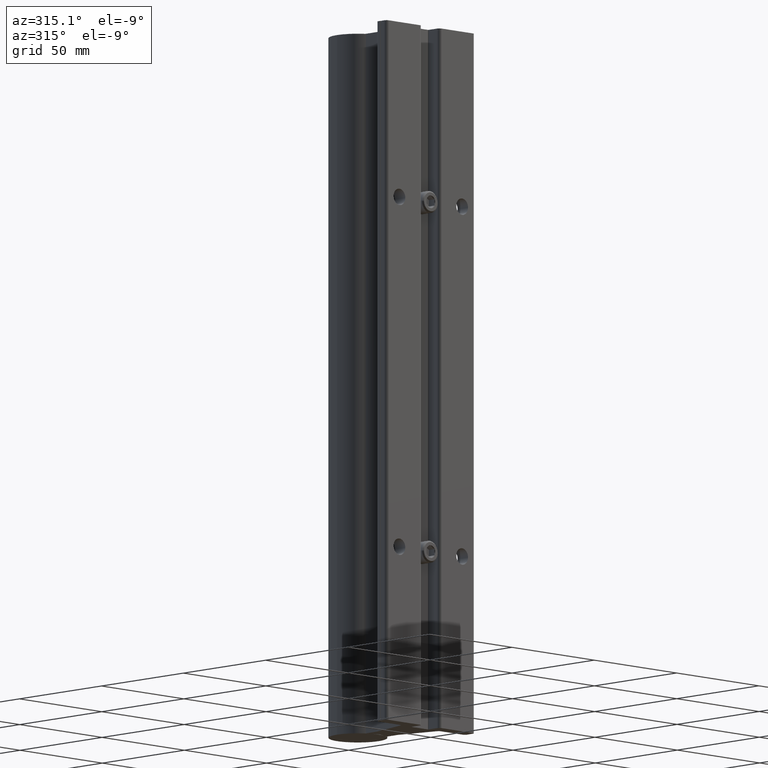
[diagram: clean part render]
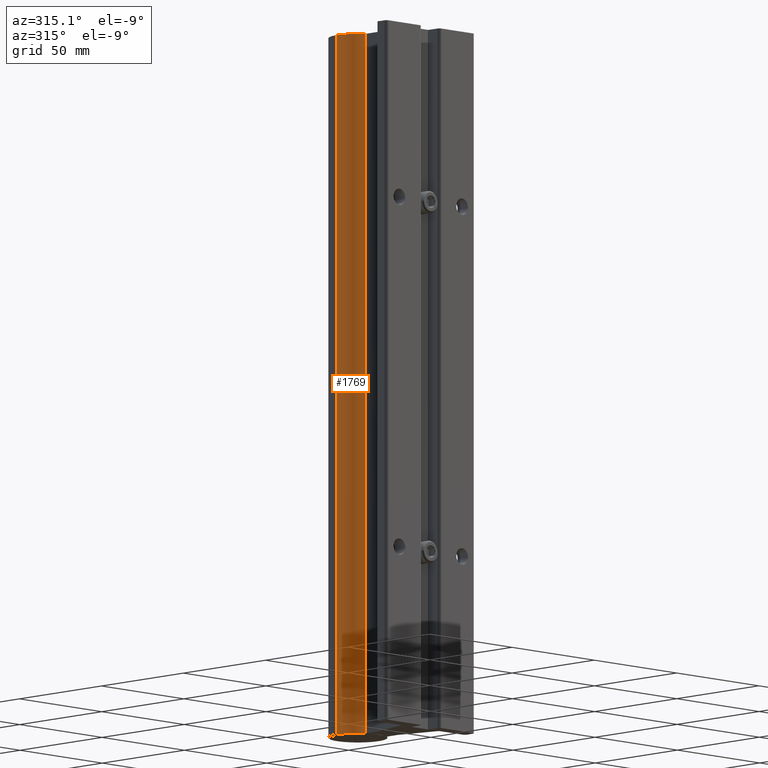
[diagram: same view with one face highlighted and labeled with its STEP entity id]
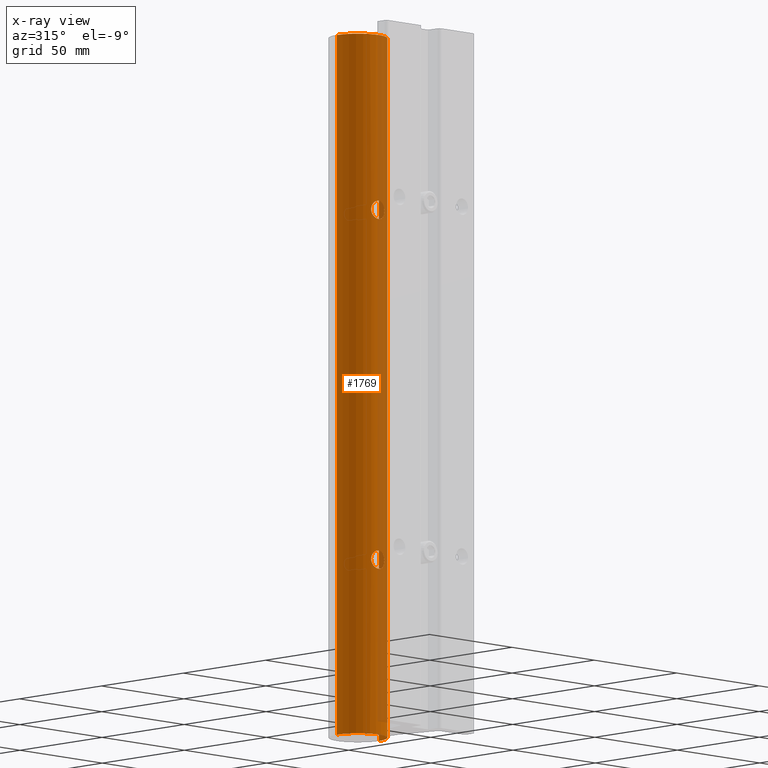
[diagram: x-ray of the same camera — body ghosted, the highlighted face saturated]
A machine part, auxiliary view. The second image highlights one B-rep face of the part: STEP entity #1769.
The next image is the same camera in x-ray: the body ghosted, the highlighted face saturated — about 19% of this face is hidden behind the body in this view.
In plain terms, the highlighted cylindrical surface (edge-blend (fillet) strip) has radius 12.7 mm, axis along (0, 0, 1).
Its self-contained STEP definition (entity closure, byte-faithful):
#4 = CARTESIAN_POINT ( 'NONE',  ( 0.09560078652235397267, 1.259149431177259748, -8.875676059742689361 ) ) ;
#48 = ORIENTED_EDGE ( 'NONE', *, *, #1730, .T. ) ;
#63 = CARTESIAN_POINT ( 'NONE',  ( -0.1564951272782237335, 1.275121831240573211, -9.010355046800681222 ) ) ;
#84 = CARTESIAN_POINT ( 'NONE',  ( -0.05063820119978776346, 1.252480159217775668, -8.851567179891718595 ) ) ;
#90 = CARTESIAN_POINT ( 'NONE',  ( -8.196081754135579170E-17, 1.250000000000000000, -3.156499999999999417 ) ) ;
#94 = CARTESIAN_POINT ( 'NONE',  ( 0.05075370098592688756, 1.252491623421628786, -3.148394792719597657 ) ) ;
#105 = CARTESIAN_POINT ( 'NONE',  ( 0.000000000000000000, 1.750000000000000000, -11.99999999999999822 ) ) ;
#113 = CARTESIAN_POINT ( 'NONE',  ( 0.09554229024632135414, 1.259137792854418958, -3.124369988947353960 ) ) ;
#124 = CARTESIAN_POINT ( 'NONE',  ( -0.04072955494209273136, 1.251560002186336895, -9.151454069033093219 ) ) ;
#142 = CARTESIAN_POINT ( 'NONE',  ( -0.1514414893444177290, 1.273481421671772917, -8.959219246323204544 ) ) ;
#143 = CARTESIAN_POINT ( 'NONE',  ( -0.1357655045532588922, 1.268748703922866650, -3.078521736294910660 ) ) ;
#164 = CARTESIAN_POINT ( 'NONE',  ( 0.1178830997218137805, 1.264038663556757758, -2.896558514937383144 ) ) ;
#167 = CARTESIAN_POINT ( 'NONE',  ( -0.05070669661409946821, 1.252486482524820977, -3.148412155886937569 ) ) ;
#175 = CARTESIAN_POINT ( 'NONE',  ( 0.1405814577952105016, 1.270152509823489595, -3.069521682105984084 ) ) ;
#184 = CARTESIAN_POINT ( 'NONE',  ( -0.02063512757121529345, 1.250324585779543529, -3.155471615359788373 ) ) ;
#188 = EDGE_CURVE ( 'NONE', #2259, #3614, #3984, .T. ) ;
#203 = CARTESIAN_POINT ( 'NONE',  ( -0.1514432164739248077, 1.273481935867222692, -3.040787736699337440 ) ) ;
#243 = CARTESIAN_POINT ( 'NONE',  ( 0.1178679316663040350, 1.264035795095121539, -9.103451840684776641 ) ) ;
#271 = VECTOR ( 'NONE', #1544, 39.37007874015748143 ) ;
#285 = CARTESIAN_POINT ( 'NONE',  ( 0.05065284700690678849, 1.252481518235631697, -8.851571626508986768 ) ) ;
#304 = CARTESIAN_POINT ( 'NONE',  ( 0.02055646357326389173, 1.250319155074914645, -8.844510654310177244 ) ) ;
#321 = CARTESIAN_POINT ( 'NONE',  ( 0.1484607547724582644, 1.272531118639973702, -8.949422464750744766 ) ) ;
#327 = CARTESIAN_POINT ( 'NONE',  ( 0.5000000000000000000, 1.750000000000000000, -11.99999999999999822 ) ) ;
#371 = CARTESIAN_POINT ( 'NONE',  ( -0.1554870185490531131, 1.274786047844190362, -3.020554180687853751 ) ) ;
#404 = CARTESIAN_POINT ( 'NONE',  ( -0.1484031328809076733, 1.272513656587303865, -9.050719394709512144 ) ) ;
#413 = CARTESIAN_POINT ( 'NONE',  ( 0.02064213769754214348, 1.250324616063695160, -3.155471563909014066 ) ) ;
#427 = CARTESIAN_POINT ( 'NONE',  ( -0.1554704722570755260, 1.274780669119014442, -8.979347474211012425 ) ) ;
#442 = CARTESIAN_POINT ( 'NONE',  ( 2.101067853164528571E-15, 1.249999999999999778, -8.843499999999998806 ) ) ;
#461 = CARTESIAN_POINT ( 'NONE',  ( -0.1554704722570754982, 1.274780669119014220, -2.979347474211013314 ) ) ;
#485 = ORIENTED_EDGE ( 'NONE', *, *, #188, .T. ) ;
#518 = DIRECTION ( 'NONE',  ( 0.000000000000000000, 0.000000000000000000, 1.000000000000000000 ) ) ;
#583 = CARTESIAN_POINT ( 'NONE',  ( 0.1356887000389168374, 1.268728011506206732, -8.921363473634940533 ) ) ;
#608 = DIRECTION ( 'NONE',  ( 0.000000000000000000, 0.000000000000000000, 1.000000000000000000 ) ) ;
#624 = CARTESIAN_POINT ( 'NONE',  ( 0.1035280489591258318, 1.260780212130743205, -9.117801000569084380 ) ) ;
#683 = CARTESIAN_POINT ( 'NONE',  ( -0.07859880021001160177, 1.256141287737158052, -9.135715486144853514 ) ) ;
#699 = CARTESIAN_POINT ( 'NONE',  ( -0.06963320848488399606, 1.254780770336873408, -9.140529546262069260 ) ) ;
#720 = CARTESIAN_POINT ( 'NONE',  ( -0.1243799828838284272, 1.265682033343106694, -8.904474761618457634 ) ) ;
#731 = CARTESIAN_POINT ( 'NONE',  ( 0.1035280489591252906, 1.260780212130743649, -3.117801000569084824 ) ) ;
#741 = CARTESIAN_POINT ( 'NONE',  ( -0.1405496522177391017, 1.270142859368248445, -8.930399423657641833 ) ) ;
#742 = CARTESIAN_POINT ( 'NONE',  ( -0.1565048378191059575, 1.275125031439485523, -2.989792767501073367 ) ) ;
#769 = CARTESIAN_POINT ( 'NONE',  ( 0.06964398895624185348, 1.254782635874228225, -3.140522836123970762 ) ) ;
#780 = CARTESIAN_POINT ( 'NONE',  ( -0.1514414893444176735, 1.273481421671772917, -2.959219246323203656 ) ) ;
#797 = EDGE_CURVE ( 'NONE', #3465, #2668, #1681, .T. ) ;
#803 = CARTESIAN_POINT ( 'NONE',  ( -0.1035399364845304288, 1.260782774289252561, -3.117790251898744813 ) ) ;
#821 = CARTESIAN_POINT ( 'NONE',  ( -0.07859880021001150463, 1.256141287737158052, -3.135715486144853514 ) ) ;
#835 = ORIENTED_EDGE ( 'NONE', *, *, #3144, .T. ) ;
#871 = LINE ( 'NONE', #327, #271 ) ;
#883 = CARTESIAN_POINT ( 'NONE',  ( 0.1565000483737302994, 1.275123453033293330, -9.010312990727419091 ) ) ;
#902 = CARTESIAN_POINT ( 'NONE',  ( 0.1034388360803587259, 1.260760536231932072, -8.882114575869943351 ) ) ;
#975 = AXIS2_PLACEMENT_3D ( 'NONE', #105, #2257, #3497 ) ;
#983 = CARTESIAN_POINT ( 'NONE',  ( -0.1034063837601280900, 1.260753755813636134, -8.882087021474569966 ) ) ;
#989 = CARTESIAN_POINT ( 'NONE',  ( -0.1484031328809074790, 1.272513656587303865, -3.050719394709512589 ) ) ;
#1000 = CARTESIAN_POINT ( 'NONE',  ( 0.01025452552329446029, 1.250000000000000000, -2.843499999999999694 ) ) ;
#1019 = CARTESIAN_POINT ( 'NONE',  ( -0.1484625484838919263, 1.272531726863998180, -8.949430081437837359 ) ) ;
#1027 = CARTESIAN_POINT ( 'NONE',  ( 0.1244033045994822895, 1.265688150019278035, -2.904506835837624035 ) ) ;
#1048 = CARTESIAN_POINT ( 'NONE',  ( 0.1405366595157273302, 1.270139003765712316, -2.930371484924218617 ) ) ;
#1060 = CARTESIAN_POINT ( 'NONE',  ( -0.1243271559051700725, 1.265667634256130603, -3.095606974650912058 ) ) ;
#1065 = CARTESIAN_POINT ( 'NONE',  ( 0.5000000000000000000, 1.750000000000000000, 0.000000000000000000 ) ) ;
#1066 = CARTESIAN_POINT ( 'NONE',  ( 0.1514646482530661031, 1.273488789680646605, -3.040701736055423599 ) ) ;
#1111 = DIRECTION ( 'NONE',  ( 1.000000000000000000, 0.000000000000000000, 0.000000000000000000 ) ) ;
#1133 = CARTESIAN_POINT ( 'NONE',  ( 0.1514350073922274831, 1.273479375567842187, -8.959202915027070446 ) ) ;
#1150 = B_SPLINE_CURVE_WITH_KNOTS ( 'NONE', 3,
 ( #1771, #3399, #304, #1521, #285, #1479, #2749, #4, #902, #1808, #2381, #583, #3032, #321, #1133, #3011, #2766, #883, #2113, #3356, #3988, #3682, #3926, #3968, #243, #624, #1218, #2459, #1197, #1177, #2442, #3702, #2133, #3052 ),
 .UNSPECIFIED., .F., .F.,
 ( 4, 2, 2, 2, 2, 2, 2, 2, 2, 2, 2, 2, 2, 2, 2, 2, 4 ),
 ( 0.01250706719454411538, 0.01328855145386468109, 0.01407003571318524854, 0.01485151997250581425, 0.01563300423182637996, 0.01641448849114694741, 0.01719597275046751139, 0.01797745700978807884, 0.01875894126910864282, 0.01954042552842921027, 0.02032190978774977425, 0.02110339404707034516, 0.02188487830639090914, 0.02266636256571147312, 0.02344784682503204057, 0.02422933108435260802, 0.02501081534367317200 ),
 .UNSPECIFIED. ) ;
#1177 = CARTESIAN_POINT ( 'NONE',  ( 0.05075370098592723450, 1.252491623421629230, -9.148394792719598101 ) ) ;
#1196 = VERTEX_POINT ( 'NONE', #3391 ) ;
#1197 = CARTESIAN_POINT ( 'NONE',  ( 0.06964398895624222818, 1.254782635874227781, -9.140522836123970762 ) ) ;
#1218 = CARTESIAN_POINT ( 'NONE',  ( 0.09554229024632142353, 1.259137792854418736, -9.124369988947355736 ) ) ;
#1258 = B_SPLINE_CURVE_WITH_KNOTS ( 'NONE', 3,
 ( #3784, #1000, #1318, #3801, #3861, #1379, #1684, #2618, #2926, #164, #1027, #3834, #1048, #2875, #3548, #1978, #3182, #3510, #3874, #1066, #2630, #175, #2310, #2292, #2550, #731, #113, #2266, #769, #94, #3793, #413, #2915, #3486 ),
 .UNSPECIFIED., .F., .F.,
 ( 4, 2, 2, 2, 2, 2, 2, 2, 2, 2, 2, 2, 2, 2, 2, 2, 4 ),
 ( 0.01250706719454408936, 0.01328855145386465333, 0.01407003571318521731, 0.01485151997250578303, 0.01563300423182634874, 0.01641448849114691272, 0.01719597275046747670, 0.01797745700978804068, 0.01875894126910860465, 0.01954042552842916863, 0.02032190978774973261, 0.02110339404707029659, 0.02188487830639086057, 0.02266636256571142455, 0.02344784682503198853, 0.02422933108435255251, 0.02501081534367311648 ),
 .UNSPECIFIED. ) ;
#1264 = DIRECTION ( 'NONE',  ( 0.000000000000000000, 0.000000000000000000, 1.000000000000000000 ) ) ;
#1281 = CARTESIAN_POINT ( 'NONE',  ( -0.04087253725953288175, 1.251570295654617748, -8.848579581971485197 ) ) ;
#1286 = CARTESIAN_POINT ( 'NONE',  ( -0.1356857239005710980, 1.268727044912736579, -2.921356273997158137 ) ) ;
#1300 = CARTESIAN_POINT ( 'NONE',  ( -0.02063932115101512615, 1.250323351658012783, -8.844524195707544223 ) ) ;
#1318 = CARTESIAN_POINT ( 'NONE',  ( 0.02055646357326355519, 1.250319155074914645, -2.844510654310176356 ) ) ;
#1320 = CARTESIAN_POINT ( 'NONE',  ( -0.1405791870913263575, 1.270151909297080550, -9.069522938698744596 ) ) ;
#1340 = CARTESIAN_POINT ( 'NONE',  ( -0.06949739479790262298, 1.254762348453770437, -8.859406111006373763 ) ) ;
#1361 = CARTESIAN_POINT ( 'NONE',  ( -0.04072955494209257177, 1.251560002186336895, -3.151454069033095440 ) ) ;
#1372 = VERTEX_POINT ( 'NONE', #3239 ) ;
#1379 = CARTESIAN_POINT ( 'NONE',  ( 0.06952565123151821513, 1.254766182063603130, -2.859419500684037274 ) ) ;
#1397 = CARTESIAN_POINT ( 'NONE',  ( -0.01025724752596621561, 1.249999999999999778, -2.843499999999999694 ) ) ;
#1420 = VERTEX_POINT ( 'NONE', #1065 ) ;
#1479 = CARTESIAN_POINT ( 'NONE',  ( 0.06952565123151799309, 1.254766182063602908, -8.859419500684031945 ) ) ;
#1521 = CARTESIAN_POINT ( 'NONE',  ( 0.04086650447296577560, 1.251569018025717517, -8.848575320274898459 ) ) ;
#1544 = DIRECTION ( 'NONE',  ( 0.000000000000000000, 0.000000000000000000, 1.000000000000000000 ) ) ;
#1577 = CARTESIAN_POINT ( 'NONE',  ( 2.101067853136701108E-15, 1.249999999999999778, -2.843499999999999694 ) ) ;
#1582 = CARTESIAN_POINT ( 'NONE',  ( -0.01041085814125164259, 1.249999999999999778, -9.156499999999999417 ) ) ;
#1601 = CARTESIAN_POINT ( 'NONE',  ( -0.05070669661409964168, 1.252486482524820754, -9.148412155886937569 ) ) ;
#1645 = CARTESIAN_POINT ( 'NONE',  ( 0.5000000000000000000, 1.750000000000000000, -11.99999999999999822 ) ) ;
#1647 = FACE_OUTER_BOUND ( 'NONE', #1901, .T. ) ;
#1681 = CIRCLE ( 'NONE', #2007, 0.5000000000000000000 ) ;
#1684 = CARTESIAN_POINT ( 'NONE',  ( 0.07868335296973177906, 1.256155164790861978, -2.864335404507161176 ) ) ;
#1700 = ORIENTED_EDGE ( 'NONE', *, *, #3170, .F. ) ;
#1709 = CARTESIAN_POINT ( 'NONE',  ( -0.1178737392740400181, 1.264037250430759096, -3.103444881357880991 ) ) ;
#1730 = EDGE_CURVE ( 'NONE', #1196, #1372, #3739, .T. ) ;
#1769 = ADVANCED_FACE ( 'NONE', ( #1647, #3539, #2283 ), #3803, .T. ) ;
#1771 = CARTESIAN_POINT ( 'NONE',  ( 2.101067853164528571E-15, 1.249999999999999778, -8.843499999999998806 ) ) ;
#1776 = ORIENTED_EDGE ( 'NONE', *, *, #3508, .T. ) ;
#1808 = CARTESIAN_POINT ( 'NONE',  ( 0.1178830997218135168, 1.264038663556757092, -8.896558514937384032 ) ) ;
#1901 = EDGE_LOOP ( 'NONE', ( #1904, #3210, #835, #1700 ) ) ;
#1904 = ORIENTED_EDGE ( 'NONE', *, *, #3922, .F. ) ;
#1911 = CARTESIAN_POINT ( 'NONE',  ( -0.1565048378191059575, 1.275125031439485079, -8.989792767501070259 ) ) ;
#1971 = CARTESIAN_POINT ( 'NONE',  ( -0.1357655045532591698, 1.268748703922866650, -9.078521736294911548 ) ) ;
#1978 = CARTESIAN_POINT ( 'NONE',  ( 0.1554580701843656376, 1.274776625798298646, -2.979269538820249696 ) ) ;
#2000 = AXIS2_PLACEMENT_3D ( 'NONE', #2449, #1264, #2238 ) ;
#2007 = AXIS2_PLACEMENT_3D ( 'NONE', #2722, #518, #1111 ) ;
#2013 = CARTESIAN_POINT ( 'NONE',  ( -0.1178406157585082242, 1.264028440204093995, -2.896511160095683213 ) ) ;
#2034 = CARTESIAN_POINT ( 'NONE',  ( -0.06949739479790265073, 1.254762348453770437, -2.859406111006373319 ) ) ;
#2052 = CARTESIAN_POINT ( 'NONE',  ( -0.5000000000000000000, 1.750000000000000000, -11.99999999999999822 ) ) ;
#2069 = CIRCLE ( 'NONE', #2000, 0.5000000000000000000 ) ;
#2113 = CARTESIAN_POINT ( 'NONE',  ( 0.1554904432202414699, 1.274787210507111190, -9.020515678285725869 ) ) ;
#2133 = CARTESIAN_POINT ( 'NONE',  ( 0.01040809537437410379, 1.250000000000000222, -9.156499999999999417 ) ) ;
#2137 = CARTESIAN_POINT ( 'NONE',  ( -0.5000000000000000000, 1.750000000000000000, -11.99999999999999822 ) ) ;
#2204 = VECTOR ( 'NONE', #608, 39.37007874015748143 ) ;
#2223 = CARTESIAN_POINT ( 'NONE',  ( -0.1243271559051704334, 1.265667634256130603, -9.095606974650911170 ) ) ;
#2229 = CARTESIAN_POINT ( 'NONE',  ( -0.1564951272782237335, 1.275121831240573211, -3.010355046800683887 ) ) ;
#2238 = DIRECTION ( 'NONE',  ( 1.000000000000000000, 0.000000000000000000, 0.000000000000000000 ) ) ;
#2257 = DIRECTION ( 'NONE',  ( 0.000000000000000000, 0.000000000000000000, 1.000000000000000000 ) ) ;
#2259 = VERTEX_POINT ( 'NONE', #90 ) ;
#2266 = CARTESIAN_POINT ( 'NONE',  ( 0.07859642925546557468, 1.256141075875272017, -3.135715970631933303 ) ) ;
#2283 = FACE_BOUND ( 'NONE', #3069, .T. ) ;
#2292 = CARTESIAN_POINT ( 'NONE',  ( 0.1243211416543387599, 1.265666113831308115, -3.095614294644717379 ) ) ;
#2296 = EDGE_LOOP ( 'NONE', ( #485, #3358 ) ) ;
#2303 = CARTESIAN_POINT ( 'NONE',  ( -0.1243799828838284688, 1.265682033343106694, -2.904474761618458079 ) ) ;
#2310 = CARTESIAN_POINT ( 'NONE',  ( 0.1357558474040492513, 1.268746003186348892, -3.078537822087537457 ) ) ;
#2321 = CARTESIAN_POINT ( 'NONE',  ( -8.196081754135579170E-17, 1.250000000000000000, -3.156499999999999417 ) ) ;
#2343 = CARTESIAN_POINT ( 'NONE',  ( -0.1405791870913261077, 1.270151909297080550, -3.069522938698746373 ) ) ;
#2366 = CARTESIAN_POINT ( 'NONE',  ( -0.1484625484838921483, 1.272531726863997514, -2.949430081437836915 ) ) ;
#2381 = CARTESIAN_POINT ( 'NONE',  ( 0.1244033045994823311, 1.265688150019278257, -8.904506835837624479 ) ) ;
#2442 = CARTESIAN_POINT ( 'NONE',  ( 0.04076219009262815191, 1.251562410105868883, -9.151446191407679009 ) ) ;
#2449 = CARTESIAN_POINT ( 'NONE',  ( 0.000000000000000000, 1.750000000000000000, 0.000000000000000000 ) ) ;
#2459 = CARTESIAN_POINT ( 'NONE',  ( 0.07859642925546561631, 1.256141075875271351, -9.135715970631931526 ) ) ;
#2550 = CARTESIAN_POINT ( 'NONE',  ( 0.1178679316663036047, 1.264035795095121539, -3.103451840684775753 ) ) ;
#2561 = CARTESIAN_POINT ( 'NONE',  ( -0.07866204735017148786, 1.256151829709960754, -8.864323441777052892 ) ) ;
#2580 = CARTESIAN_POINT ( 'NONE',  ( -0.01025724752596621041, 1.249999999999999778, -8.843499999999997030 ) ) ;
#2618 = CARTESIAN_POINT ( 'NONE',  ( 0.09560078652235430574, 1.259149431177260192, -2.875676059742692914 ) ) ;
#2622 = CARTESIAN_POINT ( 'NONE',  ( -0.1405496522177394347, 1.270142859368248889, -2.930399423657641833 ) ) ;
#2630 = CARTESIAN_POINT ( 'NONE',  ( 0.1484198940517172105, 1.272518801255798415, -3.050674901167630182 ) ) ;
#2644 = CARTESIAN_POINT ( 'NONE',  ( 2.101067853136701108E-15, 1.249999999999999778, -2.843499999999999694 ) ) ;
#2668 = VERTEX_POINT ( 'NONE', #1645 ) ;
#2722 = CARTESIAN_POINT ( 'NONE',  ( 0.000000000000000000, 1.750000000000000000, -11.99999999999999822 ) ) ;
#2749 = CARTESIAN_POINT ( 'NONE',  ( 0.07868335296973141824, 1.256155164790862200, -8.864335404507160732 ) ) ;
#2766 = CARTESIAN_POINT ( 'NONE',  ( 0.1564999516228307852, 1.275123421148132596, -8.989685541178742412 ) ) ;
#2771 = EDGE_CURVE ( 'NONE', #3614, #2259, #1258, .T. ) ;
#2826 = CARTESIAN_POINT ( 'NONE',  ( -0.1178737392740396434, 1.264037250430759096, -9.103444881357880547 ) ) ;
#2833 = CARTESIAN_POINT ( 'NONE',  ( -0.07866204735017155725, 1.256151829709960754, -2.864323441777054224 ) ) ;
#2845 = CARTESIAN_POINT ( 'NONE',  ( -0.1178406157585078773, 1.264028440204093995, -8.896511160095682769 ) ) ;
#2875 = CARTESIAN_POINT ( 'NONE',  ( 0.1484607547724582644, 1.272531118639973702, -2.949422464750743433 ) ) ;
#2905 = CARTESIAN_POINT ( 'NONE',  ( -2.094411209430302873E-16, 1.250000000000000000, -9.156499999999999417 ) ) ;
#2907 = CARTESIAN_POINT ( 'NONE',  ( -0.09556328476573582031, 1.259141713243884686, -3.124354827726028017 ) ) ;
#2915 = CARTESIAN_POINT ( 'NONE',  ( 0.01040809537437401879, 1.250000000000000000, -3.156499999999999417 ) ) ;
#2926 = CARTESIAN_POINT ( 'NONE',  ( 0.1034388360803589341, 1.260760536231932516, -2.882114575869943796 ) ) ;
#2951 = CARTESIAN_POINT ( 'NONE',  ( -0.01041085814125160269, 1.249999999999999778, -3.156499999999998973 ) ) ;
#2963 = VERTEX_POINT ( 'NONE', #3299 ) ;
#3011 = CARTESIAN_POINT ( 'NONE',  ( 0.1554580701843658597, 1.274776625798299312, -8.979269538820252805 ) ) ;
#3032 = CARTESIAN_POINT ( 'NONE',  ( 0.1405366595157273024, 1.270139003765712316, -8.930371484924217285 ) ) ;
#3052 = CARTESIAN_POINT ( 'NONE',  ( -2.094411209430302873E-16, 1.250000000000000000, -9.156499999999999417 ) ) ;
#3069 = EDGE_LOOP ( 'NONE', ( #48, #1776 ) ) ;
#3134 = CARTESIAN_POINT ( 'NONE',  ( -0.09557294541033013735, 1.259144068898282232, -8.875655083537205670 ) ) ;
#3144 = EDGE_CURVE ( 'NONE', #2668, #1420, #871, .T. ) ;
#3151 = CARTESIAN_POINT ( 'NONE',  ( -0.1035399364845299847, 1.260782774289252561, -9.117790251898744813 ) ) ;
#3169 = CARTESIAN_POINT ( 'NONE',  ( -0.09556328476573595909, 1.259141713243884686, -9.124354827726028461 ) ) ;
#3170 = EDGE_CURVE ( 'NONE', #2963, #1420, #2069, .T. ) ;
#3182 = CARTESIAN_POINT ( 'NONE',  ( 0.1564999516228308130, 1.275123421148132152, -2.989685541178743744 ) ) ;
#3210 = ORIENTED_EDGE ( 'NONE', *, *, #797, .T. ) ;
#3213 = CARTESIAN_POINT ( 'NONE',  ( -0.1356857239005710980, 1.268727044912736801, -8.921356273997158581 ) ) ;
#3239 = CARTESIAN_POINT ( 'NONE',  ( 2.101067853164528571E-15, 1.249999999999999778, -8.843499999999998806 ) ) ;
#3255 = CARTESIAN_POINT ( 'NONE',  ( -0.02063932115101497697, 1.250323351658012339, -2.844524195707542003 ) ) ;
#3274 = CARTESIAN_POINT ( 'NONE',  ( -0.05063820119978774958, 1.252480159217775446, -2.851567179891719039 ) ) ;
#3299 = CARTESIAN_POINT ( 'NONE',  ( -0.5000000000000000000, 1.750000000000000000, 0.000000000000000000 ) ) ;
#3356 = CARTESIAN_POINT ( 'NONE',  ( 0.1514646482530656868, 1.273488789680645938, -9.040701736055424931 ) ) ;
#3358 = ORIENTED_EDGE ( 'NONE', *, *, #2771, .T. ) ;
#3391 = CARTESIAN_POINT ( 'NONE',  ( -2.094411209430302873E-16, 1.250000000000000000, -9.156499999999999417 ) ) ;
#3399 = CARTESIAN_POINT ( 'NONE',  ( 0.01025452552329443774, 1.250000000000000222, -8.843499999999998806 ) ) ;
#3465 = VERTEX_POINT ( 'NONE', #2052 ) ;
#3486 = CARTESIAN_POINT ( 'NONE',  ( -8.196081754135579170E-17, 1.250000000000000000, -3.156499999999999417 ) ) ;
#3497 = DIRECTION ( 'NONE',  ( 1.000000000000000000, 0.000000000000000000, 0.000000000000000000 ) ) ;
#3508 = EDGE_CURVE ( 'NONE', #1372, #1196, #1150, .T. ) ;
#3510 = CARTESIAN_POINT ( 'NONE',  ( 0.1565000483737302439, 1.275123453033293330, -3.010312990727420424 ) ) ;
#3539 = FACE_BOUND ( 'NONE', #2296, .T. ) ;
#3540 = CARTESIAN_POINT ( 'NONE',  ( -0.09557294541033024837, 1.259144068898282232, -2.875655083537207002 ) ) ;
#3548 = CARTESIAN_POINT ( 'NONE',  ( 0.1514350073922271500, 1.273479375567841965, -2.959202915027071779 ) ) ;
#3557 = CARTESIAN_POINT ( 'NONE',  ( -0.06963320848488384340, 1.254780770336873186, -3.140529546262071037 ) ) ;
#3579 = CARTESIAN_POINT ( 'NONE',  ( -0.04087253725953278460, 1.251570295654617748, -2.848579581971487862 ) ) ;
#3614 = VERTEX_POINT ( 'NONE', #1577 ) ;
#3682 = CARTESIAN_POINT ( 'NONE',  ( 0.1405814577952108346, 1.270152509823490261, -9.069521682105984084 ) ) ;
#3702 = CARTESIAN_POINT ( 'NONE',  ( 0.02064213769754179653, 1.250324616063695382, -9.155471563909012289 ) ) ;
#3739 = B_SPLINE_CURVE_WITH_KNOTS ( 'NONE', 3,
 ( #2905, #1582, #3786, #124, #1601, #699, #683, #3169, #3151, #2826, #2223, #1971, #1320, #404, #3766, #3845, #63, #1911, #427, #142, #1019, #741, #3213, #720, #2845, #983, #3134, #2561, #1340, #84, #1281, #1300, #2580, #442 ),
 .UNSPECIFIED., .F., .F.,
 ( 4, 2, 2, 2, 2, 2, 2, 2, 2, 2, 2, 2, 2, 2, 2, 2, 4 ),
 ( 5.165158712213689538E-18, 0.0007816916996590120899, 0.001563383399318018976, 0.002345075098977025645, 0.003126766798636032747, 0.003908458498295039850, 0.004690150197954046085, 0.005471841897613053188, 0.006253533597272060290, 0.007035225296931067393, 0.007816916996590074496, 0.008598608696249081598, 0.009380300395908086966, 0.01016199209556709407, 0.01094368379522610117, 0.01172537549488510827, 0.01250706719454411538 ),
 .UNSPECIFIED. ) ;
#3766 = CARTESIAN_POINT ( 'NONE',  ( -0.1514432164739248077, 1.273481935867222692, -9.040787736699337884 ) ) ;
#3784 = CARTESIAN_POINT ( 'NONE',  ( 2.101067853136701108E-15, 1.249999999999999778, -2.843499999999999694 ) ) ;
#3786 = CARTESIAN_POINT ( 'NONE',  ( -0.02063512757121541835, 1.250324585779543529, -9.155471615359788373 ) ) ;
#3793 = CARTESIAN_POINT ( 'NONE',  ( 0.04076219009262842252, 1.251562410105868883, -3.151446191407679898 ) ) ;
#3801 = CARTESIAN_POINT ( 'NONE',  ( 0.04086650447296554661, 1.251569018025717961, -2.848575320274898459 ) ) ;
#3803 = CYLINDRICAL_SURFACE ( 'NONE', #975, 0.5000000000000000000 ) ;
#3834 = CARTESIAN_POINT ( 'NONE',  ( 0.1356887000389168374, 1.268728011506206732, -2.921363473634938757 ) ) ;
#3845 = CARTESIAN_POINT ( 'NONE',  ( -0.1554870185490531131, 1.274786047844190362, -9.020554180687852863 ) ) ;
#3861 = CARTESIAN_POINT ( 'NONE',  ( 0.05065284700690694808, 1.252481518235632141, -2.851571626508989876 ) ) ;
#3864 = CARTESIAN_POINT ( 'NONE',  ( -0.1034063837601284508, 1.260753755813636134, -2.882087021474569521 ) ) ;
#3874 = CARTESIAN_POINT ( 'NONE',  ( 0.1554904432202416642, 1.274787210507110524, -3.020515678285723205 ) ) ;
#3922 = EDGE_CURVE ( 'NONE', #3465, #2963, #3930, .T. ) ;
#3926 = CARTESIAN_POINT ( 'NONE',  ( 0.1357558474040492513, 1.268746003186348670, -9.078537822087536568 ) ) ;
#3930 = LINE ( 'NONE', #2137, #2204 ) ;
#3968 = CARTESIAN_POINT ( 'NONE',  ( 0.1243211416543388154, 1.265666113831307893, -9.095614294644716935 ) ) ;
#3984 = B_SPLINE_CURVE_WITH_KNOTS ( 'NONE', 3,
 ( #2321, #2951, #184, #1361, #167, #3557, #821, #2907, #803, #1709, #1060, #143, #2343, #989, #203, #371, #2229, #742, #461, #780, #2366, #2622, #1286, #2303, #2013, #3864, #3540, #2833, #2034, #3274, #3579, #3255, #1397, #2644 ),
 .UNSPECIFIED., .F., .F.,
 ( 4, 2, 2, 2, 2, 2, 2, 2, 2, 2, 2, 2, 2, 2, 2, 2, 4 ),
 ( 2.021287075230293743E-18, 0.0007816916996590075363, 0.001563383399318012904, 0.002345075098977018706, 0.003126766798636024074, 0.003908458498295029442, 0.004690150197954034809, 0.005471841897613040177, 0.006253533597272045545, 0.007035225296931050913, 0.007816916996590057148, 0.008598608696249062516, 0.009380300395908067884, 0.01016199209556707325, 0.01094368379522607862, 0.01172537549488508399, 0.01250706719454408936 ),
 .UNSPECIFIED. ) ;
#3988 = CARTESIAN_POINT ( 'NONE',  ( 0.1484198940517174325, 1.272518801255799081, -9.050674901167628406 ) ) ;